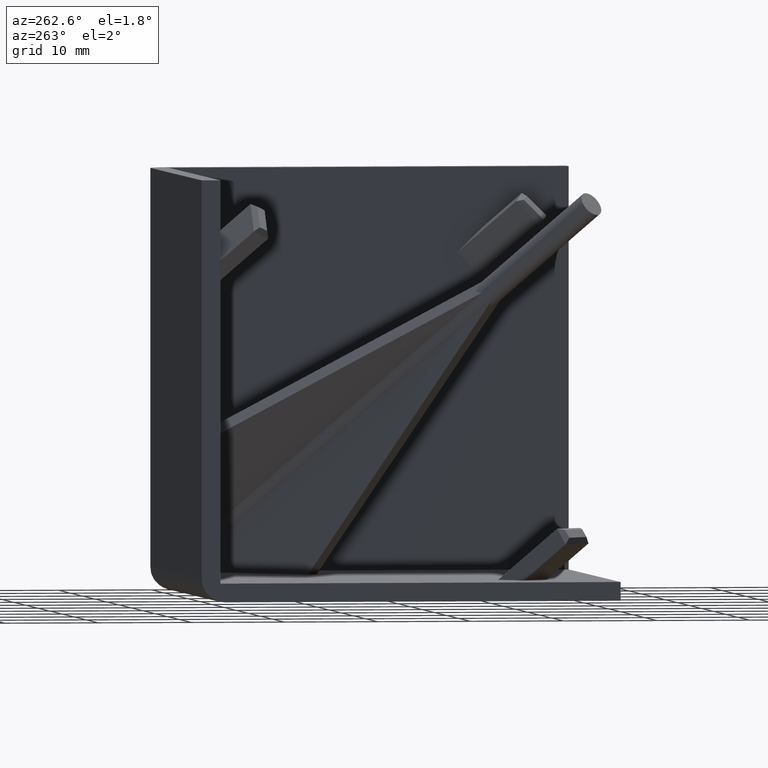
[diagram: clean part render]
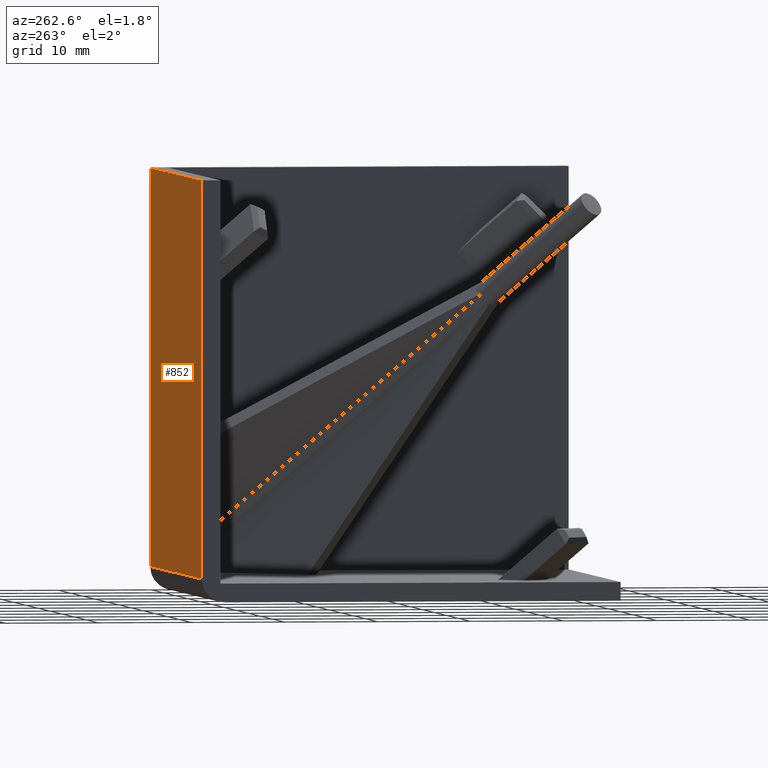
[diagram: same view with one face highlighted and labeled with its STEP entity id]
A machine part, auxiliary view. The second image highlights one B-rep face of the part: STEP entity #852.
In plain terms, the highlighted planar face has unit normal (0, 1, 0).
Its self-contained STEP definition (entity closure, byte-faithful):
#21=PLANE('',#938);
#68=FACE_OUTER_BOUND('',#120,.T.);
#120=EDGE_LOOP('',(#638,#639,#640,#641));
#195=LINE('',#1296,#301);
#200=LINE('',#1307,#306);
#201=LINE('',#1309,#307);
#202=LINE('',#1310,#308);
#301=VECTOR('',#1039,1000.);
#306=VECTOR('',#1048,1000.);
#307=VECTOR('',#1049,1000.);
#308=VECTOR('',#1050,1000.);
#425=VERTEX_POINT('',#1294);
#426=VERTEX_POINT('',#1295);
#430=VERTEX_POINT('',#1306);
#431=VERTEX_POINT('',#1308);
#505=EDGE_CURVE('',#425,#426,#195,.T.);
#511=EDGE_CURVE('',#430,#426,#200,.T.);
#512=EDGE_CURVE('',#430,#431,#201,.T.);
#513=EDGE_CURVE('',#431,#425,#202,.T.);
#638=ORIENTED_EDGE('',*,*,#511,.F.);
#639=ORIENTED_EDGE('',*,*,#512,.T.);
#640=ORIENTED_EDGE('',*,*,#513,.T.);
#641=ORIENTED_EDGE('',*,*,#505,.T.);
#852=ADVANCED_FACE('',(#68),#21,.T.);
#938=AXIS2_PLACEMENT_3D('',#1305,#1046,#1047);
#1039=DIRECTION('',(0.,0.,1.));
#1046=DIRECTION('center_axis',(0.,1.,0.));
#1047=DIRECTION('ref_axis',(0.,0.,1.));
#1048=DIRECTION('',(-1.,0.,0.));
#1049=DIRECTION('',(0.,0.,-1.));
#1050=DIRECTION('',(-1.,0.,0.));
#1294=CARTESIAN_POINT('',(0.,45.,-42.5));
#1295=CARTESIAN_POINT('',(0.,45.,0.));
#1296=CARTESIAN_POINT('',(0.,45.,-45.));
#1305=CARTESIAN_POINT('Origin',(0.,45.,-45.));
#1306=CARTESIAN_POINT('',(42.5,45.,0.));
#1307=CARTESIAN_POINT('',(0.,45.,0.));
#1308=CARTESIAN_POINT('',(42.5,45.,-42.5));
#1309=CARTESIAN_POINT('',(42.5,45.,-45.));
#1310=CARTESIAN_POINT('',(0.,45.,-42.5));